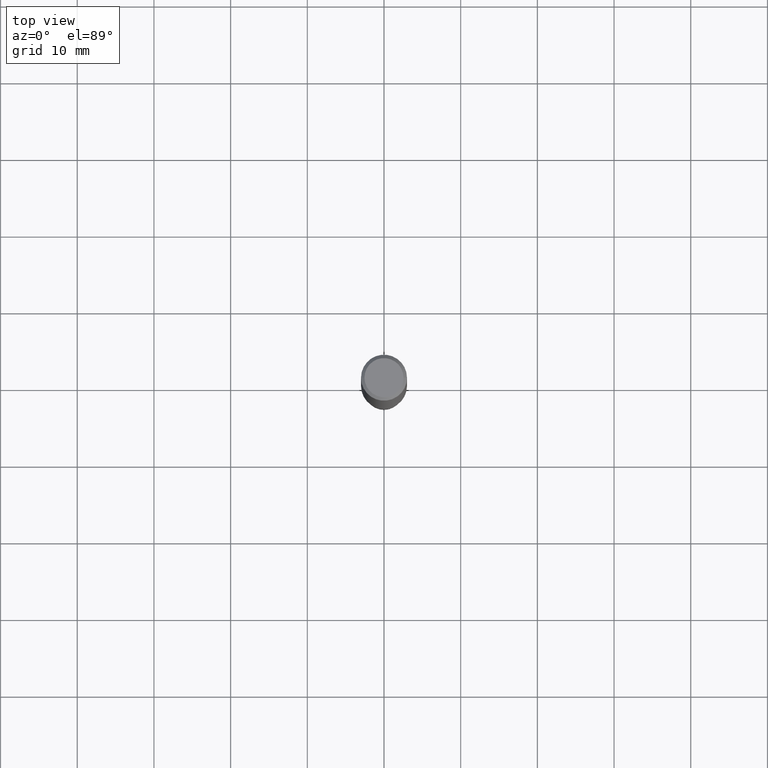
[diagram: clean part render]
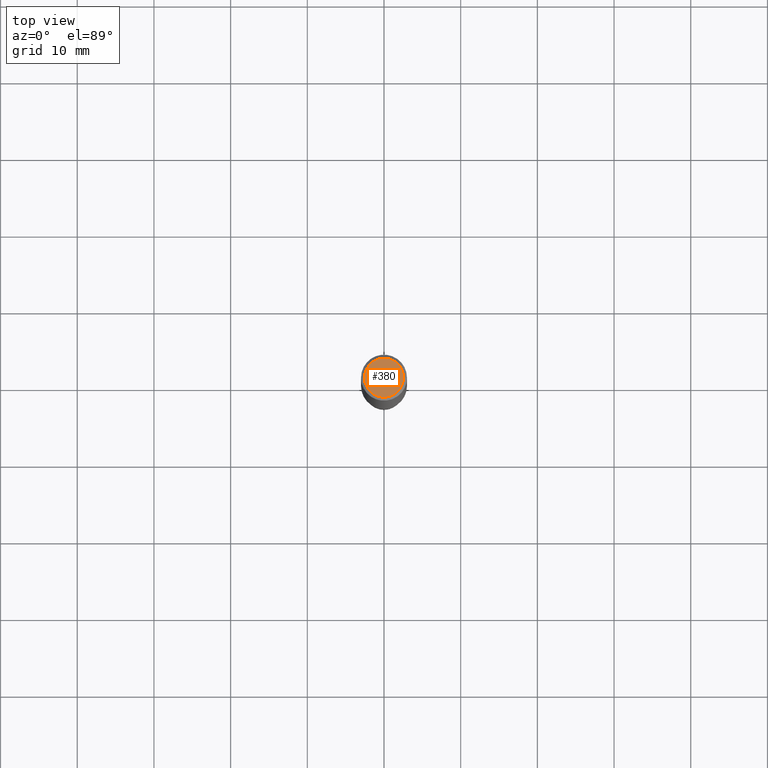
[diagram: same view with one face highlighted and labeled with its STEP entity id]
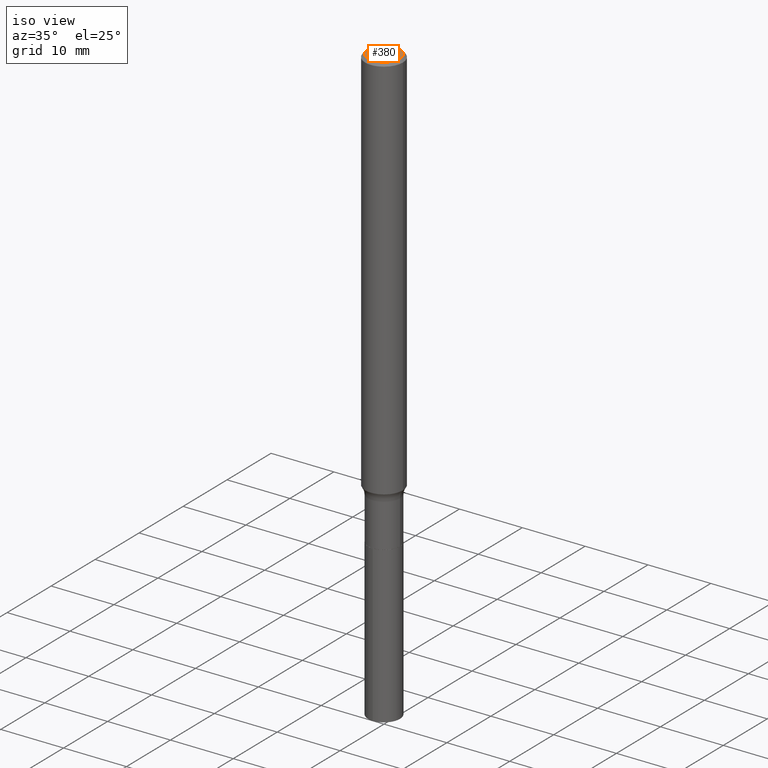
[diagram: same view with one face highlighted and labeled with its STEP entity id]
A machine part, top view. The second image highlights one B-rep face of the part: STEP entity #380.
A second angle (iso view) of the same face is appended — the face is thin or edge-on in the first view.
In plain terms, the highlighted planar face has unit normal (0, -0, -1).
Its self-contained STEP definition (entity closure, byte-faithful):
#7 = DIRECTION ( 'NONE',  ( 1.000000000000000000, -6.982962677686266711E-15, 4.875668750515085695E-29 ) ) ;
#34 = ORIENTED_EDGE ( 'NONE', *, *, #396, .T. ) ;
#44 = CARTESIAN_POINT ( 'NONE',  ( 7.015701749847187307E-46, -1.001656274515824970E-31, -2.868857591682589212E-17 ) ) ;
#69 = DIRECTION ( 'NONE',  ( -1.000000000000000000, 6.982962677686265922E-15, -4.876176775795935793E-29 ) ) ;
#83 = CIRCLE ( 'NONE', #292, 0.1003850000000000159 ) ;
#104 = EDGE_CURVE ( 'NONE', #300, #353, #83, .T. ) ;
#107 = CIRCLE ( 'NONE', #434, 0.1003850000000000159 ) ;
#108 = DIRECTION ( 'NONE',  ( -2.445468806185136597E-29, 3.491481338843145583E-15, 1.000000000000000000 ) ) ;
#159 = DIRECTION ( 'NONE',  ( 1.000000000000000000, -6.982962677686266711E-15, 4.875668750515085695E-29 ) ) ;
#247 = FACE_OUTER_BOUND ( 'NONE', #259, .T. ) ;
#251 = PLANE ( 'NONE',  #253 ) ;
#253 = AXIS2_PLACEMENT_3D ( 'NONE', #438, #399, #69 ) ;
#259 = EDGE_LOOP ( 'NONE', ( #34, #406 ) ) ;
#292 = AXIS2_PLACEMENT_3D ( 'NONE', #44, #455, #159 ) ;
#300 = VERTEX_POINT ( 'NONE', #320 ) ;
#320 = CARTESIAN_POINT ( 'NONE',  ( 0.1003850000000000159, -7.803837484803599345E-16, -2.868857591682071522E-17 ) ) ;
#346 = CARTESIAN_POINT ( 'NONE',  ( -0.1003850000000000159, 7.319105043583387675E-16, -2.868857591683090262E-17 ) ) ;
#353 = VERTEX_POINT ( 'NONE', #346 ) ;
#359 = CARTESIAN_POINT ( 'NONE',  ( 7.015701749847187307E-46, -1.001656274515824970E-31, -2.868857591682589212E-17 ) ) ;
#380 = ADVANCED_FACE ( 'NONE', ( #247 ), #251, .F. ) ;
#396 = EDGE_CURVE ( 'NONE', #353, #300, #107, .T. ) ;
#399 = DIRECTION ( 'NONE',  ( 2.438088387897960049E-29, -3.491481338843145188E-15, -1.000000000000000000 ) ) ;
#406 = ORIENTED_EDGE ( 'NONE', *, *, #104, .T. ) ;
#434 = AXIS2_PLACEMENT_3D ( 'NONE', #359, #108, #7 ) ;
#438 = CARTESIAN_POINT ( 'NONE',  ( 3.507850874923593654E-46, -5.008281372579124849E-32, -1.434428795841294606E-17 ) ) ;
#455 = DIRECTION ( 'NONE',  ( -2.445468806185136597E-29, 3.491481338843145583E-15, 1.000000000000000000 ) ) ;